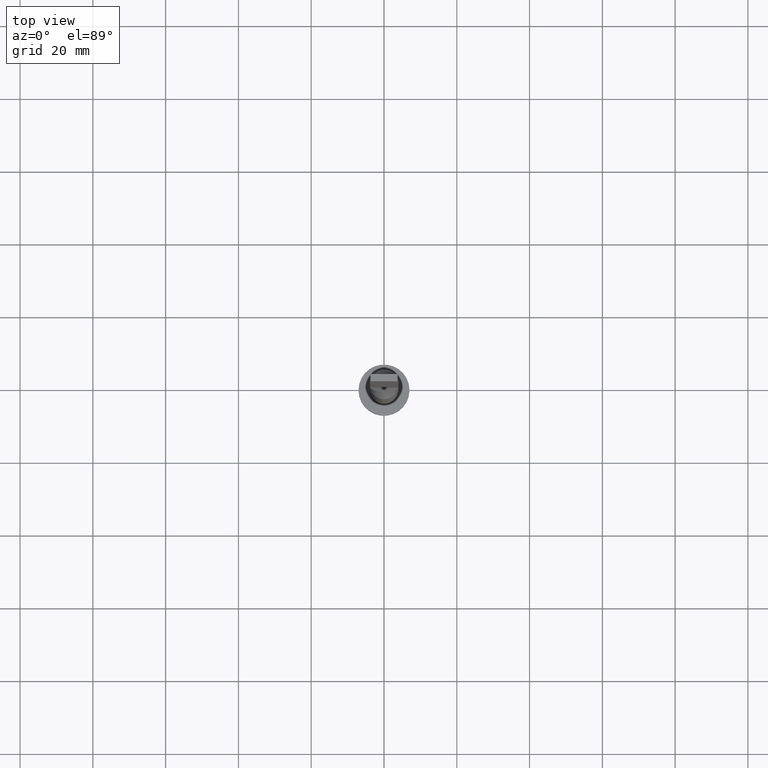
[diagram: clean part render]
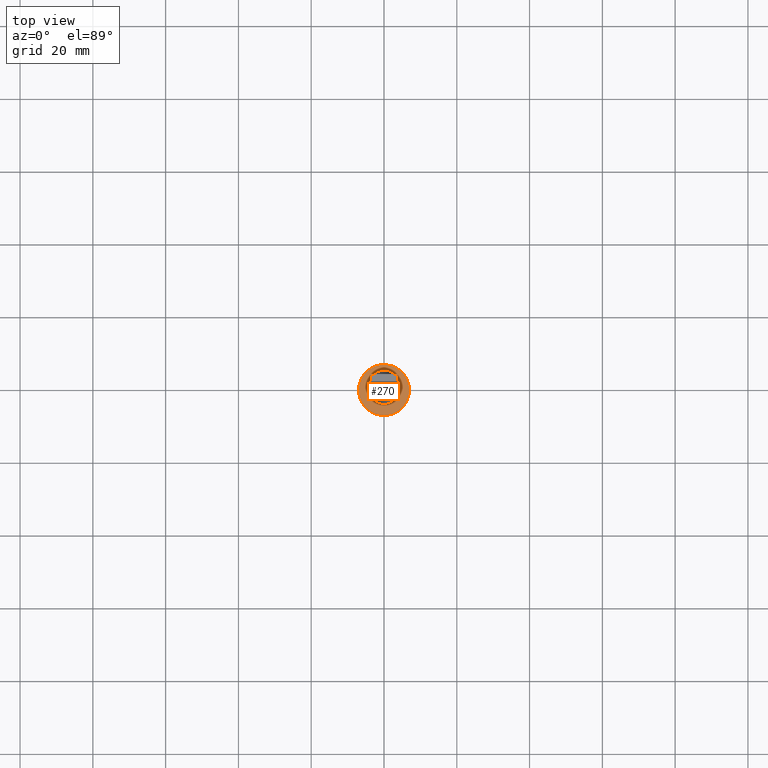
[diagram: same view with one face highlighted and labeled with its STEP entity id]
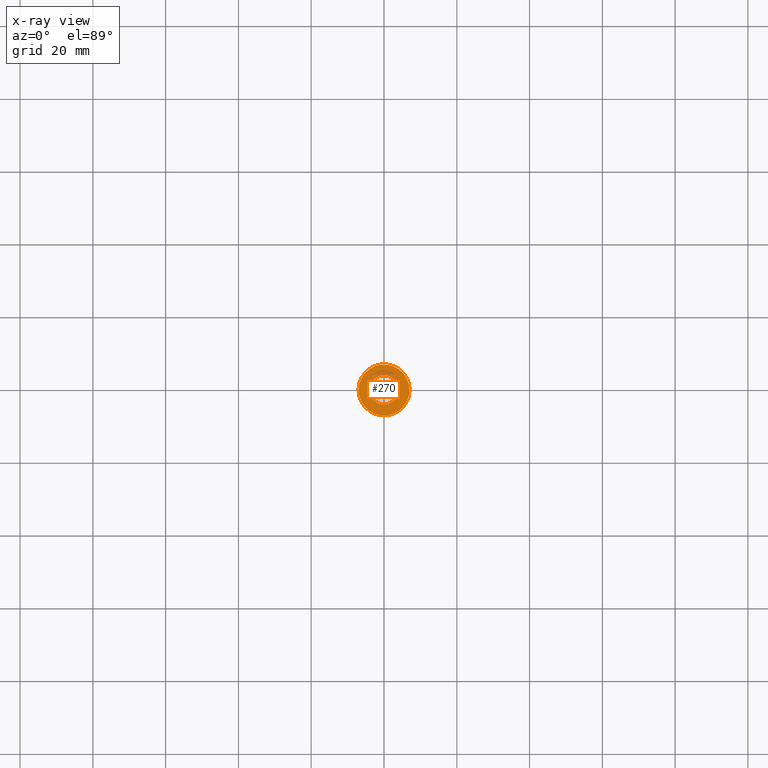
[diagram: x-ray of the same camera — body ghosted, the highlighted face saturated]
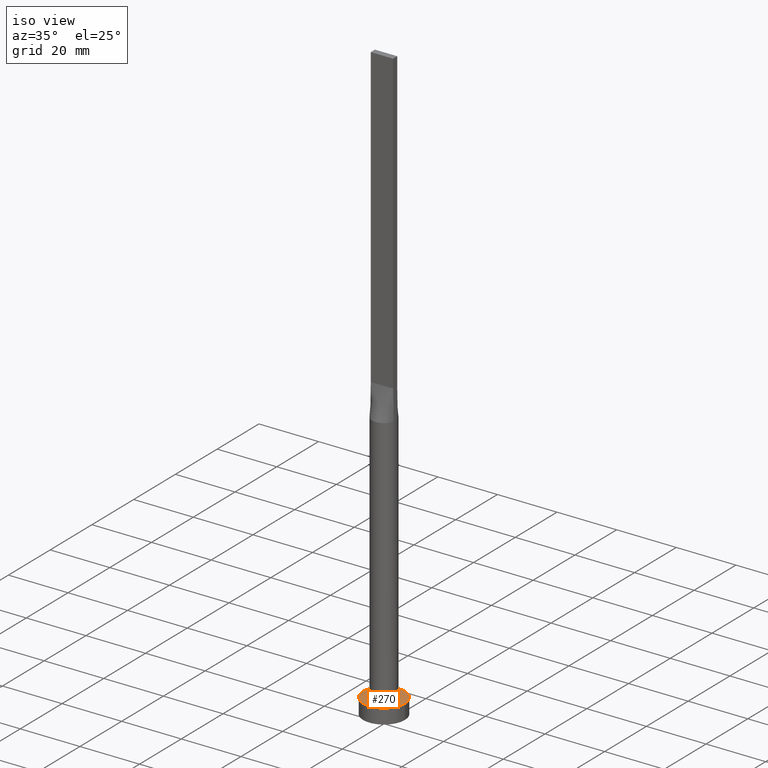
[diagram: same view with one face highlighted and labeled with its STEP entity id]
A machine part, top view. The second image highlights one B-rep face of the part: STEP entity #270.
The next image is the same camera in x-ray: the body ghosted, the highlighted face saturated — about 13% of this face is hidden behind the body in this view.
A second angle (iso view) of the same face is appended — the face is thin or edge-on in the first view.
In plain terms, the highlighted planar face has unit normal (0, 0, 1).
Its self-contained STEP definition (entity closure, byte-faithful):
#41 = DIRECTION ( 'NONE',  ( 0.000000000000000000, 0.000000000000000000, 1.000000000000000000 ) ) ;
#48 = AXIS2_PLACEMENT_3D ( 'NONE', #313, #41, #311 ) ;
#49 = DIRECTION ( 'NONE',  ( 1.000000000000000000, 0.000000000000000000, 0.000000000000000000 ) ) ;
#62 = VERTEX_POINT ( 'NONE', #501 ) ;
#75 = CIRCLE ( 'NONE', #516, 4.000000000000000000 ) ;
#79 = CIRCLE ( 'NONE', #348, 4.000000000000000000 ) ;
#88 = EDGE_LOOP ( 'NONE', ( #267, #191 ) ) ;
#110 = DIRECTION ( 'NONE',  ( 1.000000000000000000, 0.000000000000000000, 0.000000000000000000 ) ) ;
#118 = CARTESIAN_POINT ( 'NONE',  ( 0.000000000000000000, 0.000000000000000000, 5.000000000000000000 ) ) ;
#132 = EDGE_CURVE ( 'NONE', #489, #220, #79, .T. ) ;
#140 = CARTESIAN_POINT ( 'NONE',  ( 4.000000000000000000, 4.898587196589412829E-16, 5.000000000000000000 ) ) ;
#147 = CARTESIAN_POINT ( 'NONE',  ( 0.000000000000000000, 0.000000000000000000, 5.000000000000000000 ) ) ;
#149 = EDGE_LOOP ( 'NONE', ( #351, #431 ) ) ;
#185 = CARTESIAN_POINT ( 'NONE',  ( 0.000000000000000000, 0.000000000000000000, 5.000000000000000000 ) ) ;
#191 = ORIENTED_EDGE ( 'NONE', *, *, #132, .F. ) ;
#198 = DIRECTION ( 'NONE',  ( 0.000000000000000000, 0.000000000000000000, 1.000000000000000000 ) ) ;
#202 = DIRECTION ( 'NONE',  ( 0.000000000000000000, 0.000000000000000000, 1.000000000000000000 ) ) ;
#215 = CIRCLE ( 'NONE', #48, 7.000000000000000000 ) ;
#219 = DIRECTION ( 'NONE',  ( 0.000000000000000000, 0.000000000000000000, 1.000000000000000000 ) ) ;
#220 = VERTEX_POINT ( 'NONE', #564 ) ;
#251 = CARTESIAN_POINT ( 'NONE',  ( 0.000000000000000000, 0.000000000000000000, 5.000000000000000000 ) ) ;
#265 = EDGE_CURVE ( 'NONE', #220, #489, #75, .T. ) ;
#267 = ORIENTED_EDGE ( 'NONE', *, *, #265, .F. ) ;
#270 = ADVANCED_FACE ( 'NONE', ( #474, #421 ), #553, .T. ) ;
#311 = DIRECTION ( 'NONE',  ( 1.000000000000000000, 0.000000000000000000, 0.000000000000000000 ) ) ;
#313 = CARTESIAN_POINT ( 'NONE',  ( 0.000000000000000000, 0.000000000000000000, 5.000000000000000000 ) ) ;
#320 = DIRECTION ( 'NONE',  ( 0.000000000000000000, 0.000000000000000000, 1.000000000000000000 ) ) ;
#323 = AXIS2_PLACEMENT_3D ( 'NONE', #251, #198, #430 ) ;
#348 = AXIS2_PLACEMENT_3D ( 'NONE', #185, #320, #498 ) ;
#351 = ORIENTED_EDGE ( 'NONE', *, *, #410, .T. ) ;
#405 = AXIS2_PLACEMENT_3D ( 'NONE', #147, #219, #49 ) ;
#410 = EDGE_CURVE ( 'NONE', #62, #504, #215, .T. ) ;
#421 = FACE_OUTER_BOUND ( 'NONE', #149, .T. ) ;
#430 = DIRECTION ( 'NONE',  ( 1.000000000000000000, 0.000000000000000000, -0.000000000000000000 ) ) ;
#431 = ORIENTED_EDGE ( 'NONE', *, *, #486, .T. ) ;
#443 = CIRCLE ( 'NONE', #405, 7.000000000000000000 ) ;
#474 = FACE_BOUND ( 'NONE', #88, .T. ) ;
#486 = EDGE_CURVE ( 'NONE', #504, #62, #443, .T. ) ;
#489 = VERTEX_POINT ( 'NONE', #140 ) ;
#494 = CARTESIAN_POINT ( 'NONE',  ( 7.000000000000000000, 8.572527594031473190E-16, 5.000000000000000000 ) ) ;
#498 = DIRECTION ( 'NONE',  ( 1.000000000000000000, 0.000000000000000000, 0.000000000000000000 ) ) ;
#501 = CARTESIAN_POINT ( 'NONE',  ( -7.000000000000000000, 0.000000000000000000, 5.000000000000000000 ) ) ;
#504 = VERTEX_POINT ( 'NONE', #494 ) ;
#516 = AXIS2_PLACEMENT_3D ( 'NONE', #118, #202, #110 ) ;
#553 = PLANE ( 'NONE',  #323 ) ;
#564 = CARTESIAN_POINT ( 'NONE',  ( -4.000000000000000000, 0.000000000000000000, 5.000000000000000000 ) ) ;